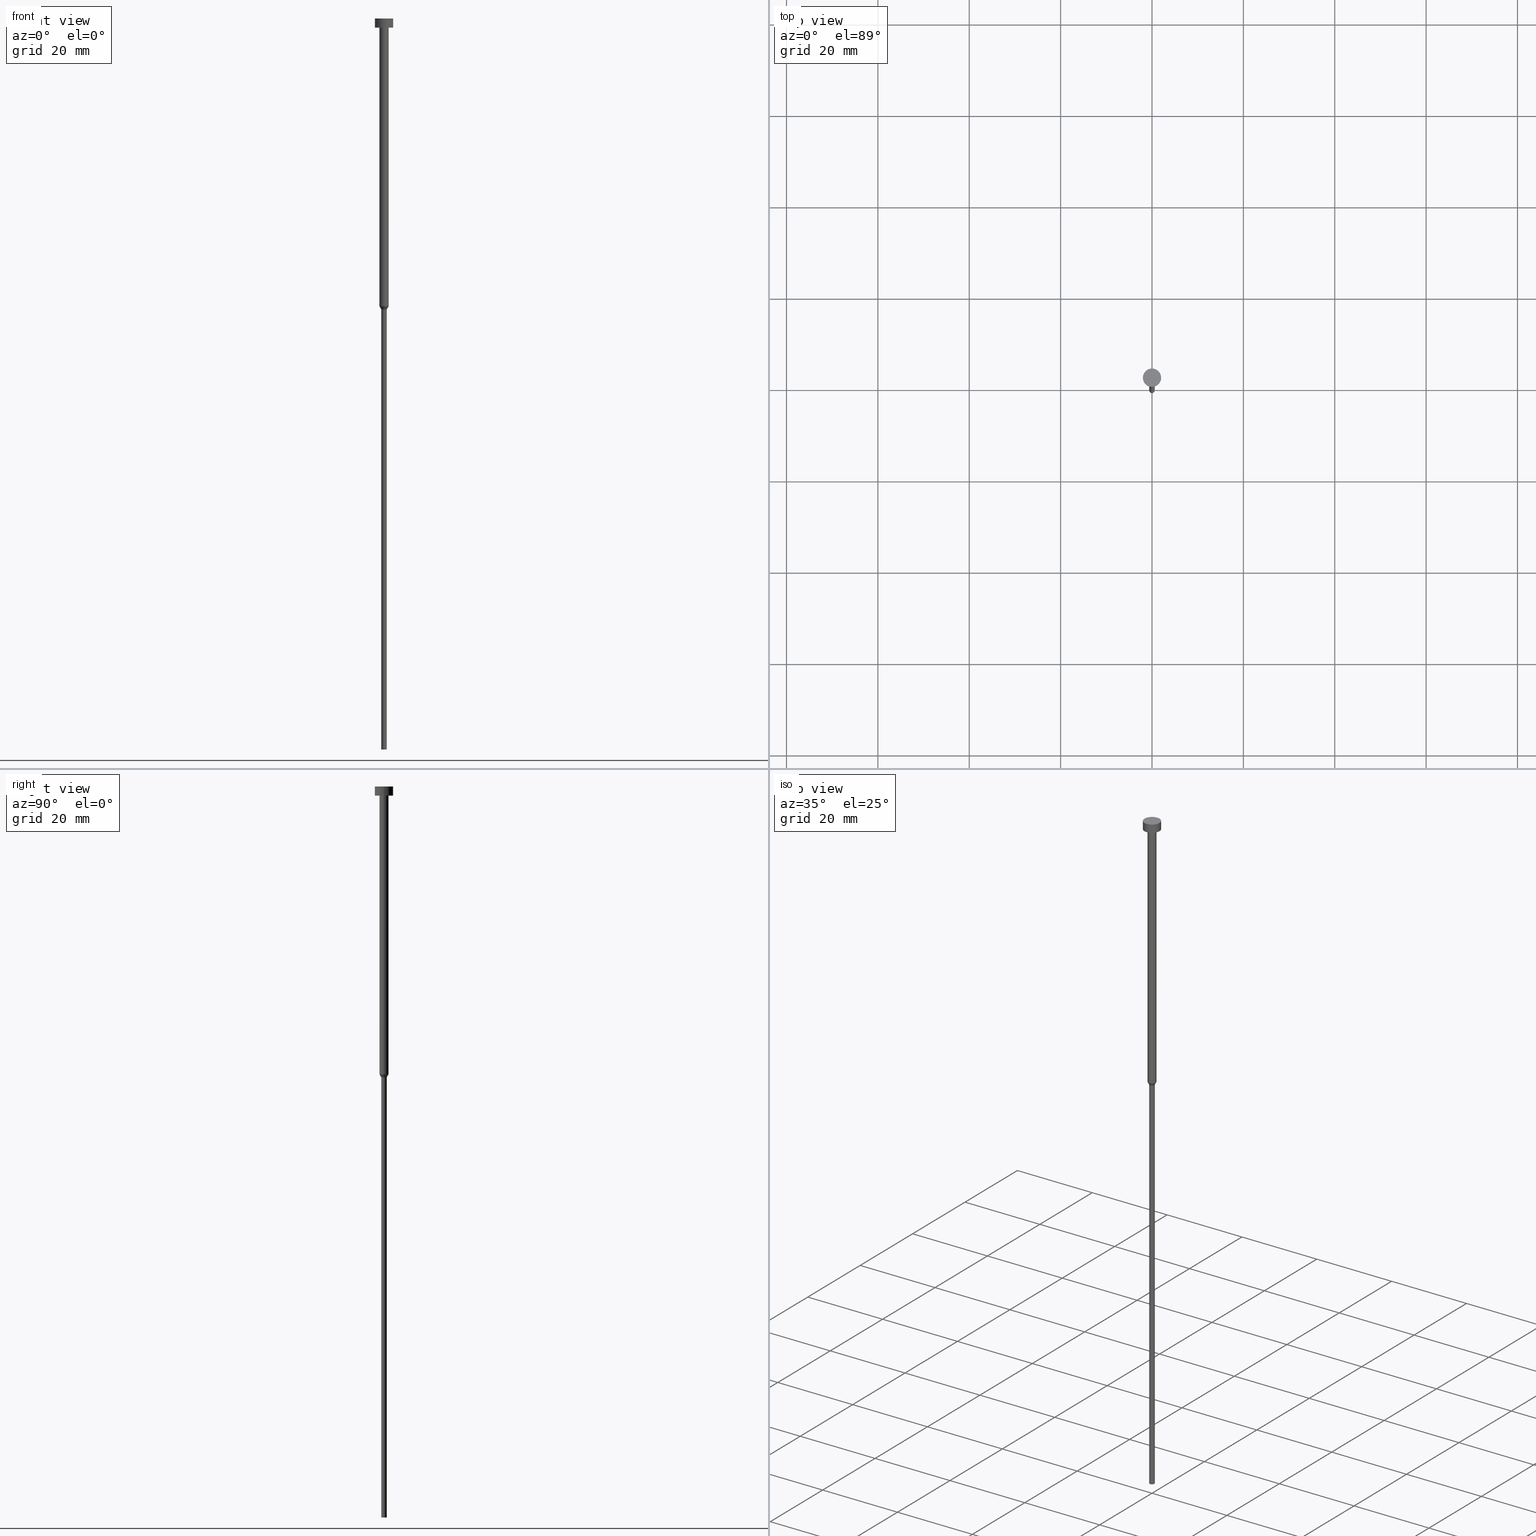
[diagram: canonical four-view strip — front | top / right | iso, engineering-drawing reading convention]
A machine part, canonical four-view strip (front | top / right | iso — engineering-drawing reading convention). The complete STEP part file that produces these views, byte-faithful:
ISO-10303-21;
HEADER;
FILE_DESCRIPTION (( 'STEP AP203' ),
    '1' );
FILE_NAME ('d66f.STEP',
    '2023-02-13T11:51:07',
    ( '' ),
    ( '' ),
    'SwSTEP 2.0',
    'SolidWorks 2019',
    '' );
FILE_SCHEMA (( 'CONFIG_CONTROL_DESIGN' ));
ENDSEC;

DATA;
#1 = CARTESIAN_POINT ( 'NONE',  ( 0.000000000000000000, 0.000000000000000000, -2.000000000000000444 ) ) ;
#2 = PERSON_AND_ORGANIZATION ( #183, #271 ) ;
#3 = APPROVAL_DATE_TIME ( #145, #191 ) ;
#4 = ORIENTED_EDGE ( 'NONE', *, *, #61, .T. ) ;
#5 = DATE_TIME_ROLE ( 'creation_date' ) ;
#6 = ORIENTED_EDGE ( 'NONE', *, *, #108, .T. ) ;
#7 = CC_DESIGN_PERSON_AND_ORGANIZATION_ASSIGNMENT ( #34, #259, ( #38 ) ) ;
#8 = AXIS2_PLACEMENT_3D ( 'NONE', #274, #79, #21 ) ;
#9 = VERTEX_POINT ( 'NONE', #231 ) ;
#10 = PERSON_AND_ORGANIZATION ( #183, #271 ) ;
#11 = ORIENTED_EDGE ( 'NONE', *, *, #136, .F. ) ;
#12 = DIRECTION ( 'NONE',  ( -0.000000000000000000, -0.000000000000000000, 1.000000000000000000 ) ) ;
#13 = LINE ( 'NONE', #41, #289 ) ;
#14 = CARTESIAN_POINT ( 'NONE',  ( -1.000000000000003109, 1.224646799147356905E-16, -63.00000000000000000 ) ) ;
#15 = CARTESIAN_POINT ( 'NONE',  ( 0.000000000000000000, 0.000000000000000000, -160.0000000000000000 ) ) ;
#16 = EDGE_CURVE ( 'NONE', #55, #342, #128, .T. ) ;
#17 = AXIS2_PLACEMENT_3D ( 'NONE', #192, #189, #355 ) ;
#18 = FACE_OUTER_BOUND ( 'NONE', #115, .T. ) ;
#19 = DIRECTION ( 'NONE',  ( -0.000000000000000000, -0.000000000000000000, 1.000000000000000000 ) ) ;
#20 = EDGE_CURVE ( 'NONE', #204, #173, #202, .T. ) ;
#21 = DIRECTION ( 'NONE',  ( 1.000000000000000000, 0.000000000000000000, 0.000000000000000000 ) ) ;
#22 = CARTESIAN_POINT ( 'NONE',  ( 2.000000000000000000, 0.000000000000000000, 0.000000000000000000 ) ) ;
#23 = DIRECTION ( 'NONE',  ( -0.000000000000000000, -0.000000000000000000, 1.000000000000000000 ) ) ;
#24 = CARTESIAN_POINT ( 'NONE',  ( 1.000000000000003553, 0.000000000000000000, -2.000000000000000444 ) ) ;
#25 = ORIENTED_EDGE ( 'NONE', *, *, #215, .F. ) ;
#26 = MANIFOLD_SOLID_BREP ( 'Rotovat1', #319 ) ;
#27 = CC_DESIGN_SECURITY_CLASSIFICATION ( #201, ( #305 ) ) ;
#28 = APPROVAL_STATUS ( 'not_yet_approved' ) ;
#29 = ORIENTED_EDGE ( 'NONE', *, *, #136, .T. ) ;
#30 = ORIENTED_EDGE ( 'NONE', *, *, #234, .F. ) ;
#31 = APPLICATION_PROTOCOL_DEFINITION ( 'international standard', 'config_control_design', 1994, #155 ) ;
#32 = ORIENTED_EDGE ( 'NONE', *, *, #102, .F. ) ;
#33 = AXIS2_PLACEMENT_3D ( 'NONE', #345, #129, #49 ) ;
#34 = PERSON_AND_ORGANIZATION ( #183, #271 ) ;
#35 = VERTEX_POINT ( 'NONE', #67 ) ;
#36 = EDGE_CURVE ( 'NONE', #282, #263, #181, .T. ) ;
#37 = EDGE_CURVE ( 'NONE', #204, #223, #212, .T. ) ;
#38 = PRODUCT ( 'd66f', 'd66f', '', ( #116 ) ) ;
#39 = ORIENTED_EDGE ( 'NONE', *, *, #168, .F. ) ;
#40 = VECTOR ( 'NONE', #12, 1000.000000000000000 ) ;
#41 = CARTESIAN_POINT ( 'NONE',  ( -0.5999999999999998668, 7.347880794884117764E-17, 0.000000000000000000 ) ) ;
#42 = AXIS2_PLACEMENT_3D ( 'NONE', #150, #172, #310 ) ;
#43 = DIRECTION ( 'NONE',  ( -0.000000000000000000, -0.000000000000000000, 1.000000000000000000 ) ) ;
#44 = DIRECTION ( 'NONE',  ( 1.000000000000000000, 0.000000000000000000, 0.000000000000000000 ) ) ;
#45 = FACE_OUTER_BOUND ( 'NONE', #250, .T. ) ;
#46 = CARTESIAN_POINT ( 'NONE',  ( 0.000000000000000000, 0.000000000000000000, -1.224646799147352961E-16 ) ) ;
#47 = ADVANCED_FACE ( 'NONE', ( #182 ), #78, .T. ) ;
#48 = FACE_OUTER_BOUND ( 'NONE', #237, .T. ) ;
#49 = DIRECTION ( 'NONE',  ( 1.000000000000000000, 0.000000000000000000, 0.000000000000000000 ) ) ;
#50 = AXIS2_PLACEMENT_3D ( 'NONE', #199, #346, #347 ) ;
#51 = FACE_BOUND ( 'NONE', #174, .T. ) ;
#52 = ADVANCED_FACE ( 'NONE', ( #270 ), #103, .T. ) ;
#53 = CARTESIAN_POINT ( 'NONE',  ( 2.000000000000000000, 0.000000000000000000, -2.000000000000000444 ) ) ;
#54 = ADVANCED_BREP_SHAPE_REPRESENTATION ( 'd66f', ( #26, #42 ), #157 ) ;
#55 = VERTEX_POINT ( 'NONE', #268 ) ;
#56 = CIRCLE ( 'NONE', #74, 0.5999999999999998668 ) ;
#57 = CALENDAR_DATE ( 2023, 13, 2 ) ;
#58 = ORIENTED_EDGE ( 'NONE', *, *, #20, .F. ) ;
#59 = CIRCLE ( 'NONE', #304, 0.5999999999999998668 ) ;
#60 = AXIS2_PLACEMENT_3D ( 'NONE', #246, #23, #224 ) ;
#61 = EDGE_CURVE ( 'NONE', #35, #282, #257, .T. ) ;
#62 = ORIENTED_EDGE ( 'NONE', *, *, #37, .T. ) ;
#63 = DIRECTION ( 'NONE',  ( -0.000000000000000000, -0.000000000000000000, 1.000000000000000000 ) ) ;
#64 = ADVANCED_FACE ( 'NONE', ( #133 ), #132, .T. ) ;
#65 = ORIENTED_EDGE ( 'NONE', *, *, #248, .F. ) ;
#66 = PERSON_AND_ORGANIZATION_ROLE ( 'classification_officer' ) ;
#67 = CARTESIAN_POINT ( 'NONE',  ( -0.5999999999999998668, 7.347880794884117764E-17, -160.0000000000000000 ) ) ;
#68 = CARTESIAN_POINT ( 'NONE',  ( 0.000000000000000000, 0.000000000000000000, -160.0000000000000000 ) ) ;
#69 = DIRECTION ( 'NONE',  ( -0.000000000000000000, -0.000000000000000000, 1.000000000000000000 ) ) ;
#70 = CIRCLE ( 'NONE', #60, 2.000000000000000000 ) ;
#71 = DIRECTION ( 'NONE',  ( -0.000000000000000000, -0.000000000000000000, 1.000000000000000000 ) ) ;
#72 = DIRECTION ( 'NONE',  ( 1.000000000000000000, 0.000000000000000000, 0.000000000000000000 ) ) ;
#73 = DIRECTION ( 'NONE',  ( -0.000000000000000000, -0.000000000000000000, 1.000000000000000000 ) ) ;
#74 = AXIS2_PLACEMENT_3D ( 'NONE', #184, #156, #72 ) ;
#75 = DIRECTION ( 'NONE',  ( 1.000000000000000000, 0.000000000000000000, 0.000000000000000000 ) ) ;
#76 = CYLINDRICAL_SURFACE ( 'NONE', #8, 0.5999999999999998668 ) ;
#77 = CARTESIAN_POINT ( 'NONE',  ( -1.000000000000003331, 1.224646799147357151E-16, 0.000000000000000000 ) ) ;
#78 = CONICAL_SURFACE ( 'NONE', #149, 1.000000000000003109, 0.5235987755982968173 ) ;
#79 = DIRECTION ( 'NONE',  ( -0.000000000000000000, -0.000000000000000000, 1.000000000000000000 ) ) ;
#80 = AXIS2_PLACEMENT_3D ( 'NONE', #1, #351, #197 ) ;
#81 = FACE_OUTER_BOUND ( 'NONE', #232, .T. ) ;
#82 = VERTEX_POINT ( 'NONE', #321 ) ;
#83 = APPROVAL_ROLE ( '' ) ;
#84 = DIRECTION ( 'NONE',  ( -0.000000000000000000, -0.000000000000000000, 1.000000000000000000 ) ) ;
#85 = EDGE_CURVE ( 'NONE', #35, #82, #13, .T. ) ;
#86 = CALENDAR_DATE ( 2023, 13, 2 ) ;
#87 = DESIGN_CONTEXT ( 'detailed design', #126, 'design' ) ;
#88 = ORIENTED_EDGE ( 'NONE', *, *, #139, .T. ) ;
#89 = AXIS2_PLACEMENT_3D ( 'NONE', #46, #97, #211 ) ;
#90 = ORIENTED_EDGE ( 'NONE', *, *, #168, .T. ) ;
#91 = CALENDAR_DATE ( 2023, 13, 2 ) ;
#92 = EDGE_LOOP ( 'NONE', ( #176, #279, #39, #146 ) ) ;
#93 = COORDINATED_UNIVERSAL_TIME_OFFSET ( 1, 0, .AHEAD. ) ;
#94 = ORIENTED_EDGE ( 'NONE', *, *, #121, .F. ) ;
#95 = APPROVAL_PERSON_ORGANIZATION ( #2, #191, #112 ) ;
#96 = DIRECTION ( 'NONE',  ( -0.000000000000000000, -0.000000000000000000, 1.000000000000000000 ) ) ;
#97 = DIRECTION ( 'NONE',  ( 0.000000000000000000, -0.000000000000000000, 1.000000000000000000 ) ) ;
#98 = CC_DESIGN_DATE_AND_TIME_ASSIGNMENT ( #235, #177, ( #201 ) ) ;
#99 = CARTESIAN_POINT ( 'NONE',  ( -2.000000000000000000, 2.449293598294706414E-16, -2.449293598294705921E-16 ) ) ;
#100 = AXIS2_PLACEMENT_3D ( 'NONE', #277, #275, #75 ) ;
#101 = DIRECTION ( 'NONE',  ( -0.000000000000000000, -0.000000000000000000, 1.000000000000000000 ) ) ;
#102 = EDGE_CURVE ( 'NONE', #173, #190, #135, .T. ) ;
#103 = CYLINDRICAL_SURFACE ( 'NONE', #218, 0.5999999999999998668 ) ;
#104 = CARTESIAN_POINT ( 'NONE',  ( 0.000000000000000000, 0.000000000000000000, -160.0000000000000000 ) ) ;
#105 = VECTOR ( 'NONE', #63, 1000.000000000000000 ) ;
#106 = AXIS2_PLACEMENT_3D ( 'NONE', #167, #222, #300 ) ;
#107 = FACE_OUTER_BOUND ( 'NONE', #117, .T. ) ;
#108 = EDGE_CURVE ( 'NONE', #82, #263, #56, .T. ) ;
#109 = CARTESIAN_POINT ( 'NONE',  ( 0.5999999999999998668, 0.000000000000000000, -160.0000000000000000 ) ) ;
#110 = AXIS2_PLACEMENT_3D ( 'NONE', #322, #73, #162 ) ;
#111 = ADVANCED_FACE ( 'NONE', ( #349 ), #264, .T. ) ;
#112 = APPROVAL_ROLE ( '' ) ;
#113 = PERSON_AND_ORGANIZATION_ROLE ( 'design_supplier' ) ;
#114 = APPROVAL ( #339, 'NEUR�EN�' ) ;
#115 = EDGE_LOOP ( 'NONE', ( #236, #286 ) ) ;
#116 = MECHANICAL_CONTEXT ( 'NONE', #155, 'mechanical' ) ;
#117 = EDGE_LOOP ( 'NONE', ( #94, #337 ) ) ;
#118 = CC_DESIGN_APPROVAL ( #114, ( #201 ) ) ;
#119 = PERSON_AND_ORGANIZATION ( #183, #271 ) ;
#120 = ORIENTED_EDGE ( 'NONE', *, *, #325, .T. ) ;
#121 = EDGE_CURVE ( 'NONE', #282, #35, #59, .T. ) ;
#122 = ORIENTED_EDGE ( 'NONE', *, *, #85, .F. ) ;
#123 = ORIENTED_EDGE ( 'NONE', *, *, #352, .F. ) ;
#124 = AXIS2_PLACEMENT_3D ( 'NONE', #265, #186, #44 ) ;
#125 = DIRECTION ( 'NONE',  ( 1.000000000000000000, 0.000000000000000000, 0.000000000000000000 ) ) ;
#126 = APPLICATION_CONTEXT ( 'configuration controlled 3d designs of mechanical parts and assemblies' ) ;
#127 = CARTESIAN_POINT ( 'NONE',  ( 0.000000000000000000, 0.000000000000000000, 0.000000000000000000 ) ) ;
#128 = CIRCLE ( 'NONE', #341, 1.000000000000003553 ) ;
#129 = DIRECTION ( 'NONE',  ( -0.000000000000000000, -0.000000000000000000, 1.000000000000000000 ) ) ;
#130 = ADVANCED_FACE ( 'NONE', ( #18 ), #239, .T. ) ;
#131 = VECTOR ( 'NONE', #159, 1000.000000000000000 ) ;
#132 = CYLINDRICAL_SURFACE ( 'NONE', #171, 1.000000000000003331 ) ;
#133 = FACE_OUTER_BOUND ( 'NONE', #283, .T. ) ;
#134 =( LENGTH_UNIT ( ) NAMED_UNIT ( * ) SI_UNIT ( .MILLI., .METRE. ) );
#135 = CIRCLE ( 'NONE', #193, 2.000000000000000000 ) ;
#136 = EDGE_CURVE ( 'NONE', #287, #342, #350, .T. ) ;
#137 = CIRCLE ( 'NONE', #110, 1.000000000000003109 ) ;
#138 = DIRECTION ( 'NONE',  ( 0.000000000000000000, 0.000000000000000000, -1.000000000000000000 ) ) ;
#139 = EDGE_CURVE ( 'NONE', #82, #9, #318, .T. ) ;
#140 = DIRECTION ( 'NONE',  ( -0.000000000000000000, -0.000000000000000000, 1.000000000000000000 ) ) ;
#141 = FACE_OUTER_BOUND ( 'NONE', #303, .T. ) ;
#142 = ORIENTED_EDGE ( 'NONE', *, *, #139, .F. ) ;
#143 = DATE_AND_TIME ( #280, #238 ) ;
#144 = CIRCLE ( 'NONE', #80, 2.000000000000000000 ) ;
#145 = DATE_AND_TIME ( #86, #296 ) ;
#146 = ORIENTED_EDGE ( 'NONE', *, *, #36, .F. ) ;
#147 = PERSON_AND_ORGANIZATION ( #183, #271 ) ;
#148 = ORIENTED_EDGE ( 'NONE', *, *, #20, .T. ) ;
#149 = AXIS2_PLACEMENT_3D ( 'NONE', #185, #273, #316 ) ;
#150 = CARTESIAN_POINT ( 'NONE',  ( 0.000000000000000000, 0.000000000000000000, 0.000000000000000000 ) ) ;
#151 = ORIENTED_EDGE ( 'NONE', *, *, #325, .F. ) ;
#152 = PERSON_AND_ORGANIZATION ( #183, #271 ) ;
#153 = EDGE_LOOP ( 'NONE', ( #90, #88, #205, #65 ) ) ;
#154 = CARTESIAN_POINT ( 'NONE',  ( 0.5999999999999998668, 0.000000000000000000, 0.000000000000000000 ) ) ;
#155 = APPLICATION_CONTEXT ( 'configuration controlled 3d designs of mechanical parts and assemblies' ) ;
#156 = DIRECTION ( 'NONE',  ( -0.000000000000000000, -0.000000000000000000, 1.000000000000000000 ) ) ;
#157 =( GEOMETRIC_REPRESENTATION_CONTEXT ( 3 ) GLOBAL_UNCERTAINTY_ASSIGNED_CONTEXT ( ( #281 ) ) GLOBAL_UNIT_ASSIGNED_CONTEXT ( ( #134, #244, #326 ) ) REPRESENTATION_CONTEXT ( 'NONE', 'WORKASPACE' ) );
#158 = DIRECTION ( 'NONE',  ( 1.000000000000000000, 0.000000000000000000, 0.000000000000000000 ) ) ;
#159 = DIRECTION ( 'NONE',  ( -0.000000000000000000, -0.000000000000000000, 1.000000000000000000 ) ) ;
#160 = ADVANCED_FACE ( 'NONE', ( #45 ), #291, .T. ) ;
#161 = DIRECTION ( 'NONE',  ( 1.000000000000000000, 0.000000000000000000, 0.000000000000000000 ) ) ;
#162 = DIRECTION ( 'NONE',  ( 1.000000000000000000, 0.000000000000000000, 0.000000000000000000 ) ) ;
#163 = LINE ( 'NONE', #77, #242 ) ;
#164 = CC_DESIGN_PERSON_AND_ORGANIZATION_ASSIGNMENT ( #206, #66, ( #201 ) ) ;
#165 = CARTESIAN_POINT ( 'NONE',  ( 0.5999999999999998668, 0.000000000000000000, -63.69282032302756136 ) ) ;
#166 = CIRCLE ( 'NONE', #33, 1.000000000000003553 ) ;
#167 = CARTESIAN_POINT ( 'NONE',  ( 0.000000000000000000, 0.000000000000000000, 0.000000000000000000 ) ) ;
#168 = EDGE_CURVE ( 'NONE', #263, #82, #214, .T. ) ;
#169 = PLANE ( 'NONE',  #348 ) ;
#170 = ORIENTED_EDGE ( 'NONE', *, *, #352, .T. ) ;
#171 = AXIS2_PLACEMENT_3D ( 'NONE', #293, #69, #295 ) ;
#172 = DIRECTION ( 'NONE',  ( 0.000000000000000000, 0.000000000000000000, 1.000000000000000000 ) ) ;
#173 = VERTEX_POINT ( 'NONE', #99 ) ;
#174 = EDGE_LOOP ( 'NONE', ( #308, #225 ) ) ;
#175 = APPROVAL_STATUS ( 'not_yet_approved' ) ;
#176 = ORIENTED_EDGE ( 'NONE', *, *, #121, .T. ) ;
#177 = DATE_TIME_ROLE ( 'classification_date' ) ;
#178 = ORIENTED_EDGE ( 'NONE', *, *, #203, .T. ) ;
#179 = VECTOR ( 'NONE', #323, 1000.000000000000000 ) ;
#180 = APPROVAL_ROLE ( '' ) ;
#181 = LINE ( 'NONE', #154, #40 ) ;
#182 = FACE_OUTER_BOUND ( 'NONE', #312, .T. ) ;
#183 = PERSON ( 'NEUR�EN�', 'NEUR�EN�', 'NEUR�EN�', ('NEUR�EN�'), ('NEUR�EN�'), ('NEUR�EN�') ) ;
#184 = CARTESIAN_POINT ( 'NONE',  ( 0.000000000000000000, 0.000000000000000000, -63.69282032302756136 ) ) ;
#185 = CARTESIAN_POINT ( 'NONE',  ( 0.000000000000000000, 0.000000000000000000, -63.00000000000000000 ) ) ;
#186 = DIRECTION ( 'NONE',  ( -0.000000000000000000, -0.000000000000000000, 1.000000000000000000 ) ) ;
#187 = CARTESIAN_POINT ( 'NONE',  ( 0.000000000000000000, 0.000000000000000000, 0.000000000000000000 ) ) ;
#188 = CC_DESIGN_APPROVAL ( #191, ( #305 ) ) ;
#189 = DIRECTION ( 'NONE',  ( 0.000000000000000000, 0.000000000000000000, -1.000000000000000000 ) ) ;
#190 = VERTEX_POINT ( 'NONE', #213 ) ;
#191 = APPROVAL ( #28, 'NEUR�EN�' ) ;
#192 = CARTESIAN_POINT ( 'NONE',  ( 0.000000000000000000, -2.000000000000000000, -2.000000000000000444 ) ) ;
#193 = AXIS2_PLACEMENT_3D ( 'NONE', #241, #19, #240 ) ;
#194 = CARTESIAN_POINT ( 'NONE',  ( 1.000000000000003109, 0.000000000000000000, -63.00000000000000000 ) ) ;
#195 = LOCAL_TIME ( 12, 51, 7.000000000000000000, #254 ) ;
#196 = DIRECTION ( 'NONE',  ( -1.000000000000000000, 0.000000000000000000, -0.000000000000000000 ) ) ;
#197 = DIRECTION ( 'NONE',  ( 1.000000000000000000, 0.000000000000000000, 0.000000000000000000 ) ) ;
#198 = APPROVAL_DATE_TIME ( #143, #207 ) ;
#199 = CARTESIAN_POINT ( 'NONE',  ( 0.000000000000000000, 0.000000000000000000, -2.000000000000000444 ) ) ;
#200 = SHAPE_DEFINITION_REPRESENTATION ( #233, #54 ) ;
#201 = SECURITY_CLASSIFICATION ( '', '', #227 ) ;
#202 = LINE ( 'NONE', #306, #105 ) ;
#203 = EDGE_CURVE ( 'NONE', #287, #9, #137, .T. ) ;
#204 = VERTEX_POINT ( 'NONE', #320 ) ;
#205 = ORIENTED_EDGE ( 'NONE', *, *, #203, .F. ) ;
#206 = PERSON_AND_ORGANIZATION ( #183, #271 ) ;
#207 = APPROVAL ( #175, 'NEUR�EN�' ) ;
#208 = CARTESIAN_POINT ( 'NONE',  ( 0.000000000000000000, 0.000000000000000000, -2.000000000000000444 ) ) ;
#209 = VECTOR ( 'NONE', #298, 1000.000000000000114 ) ;
#210 = DIRECTION ( 'NONE',  ( 1.000000000000000000, 0.000000000000000000, 0.000000000000000000 ) ) ;
#211 = DIRECTION ( 'NONE',  ( 1.000000000000000000, 0.000000000000000000, 0.000000000000000000 ) ) ;
#212 = CIRCLE ( 'NONE', #50, 2.000000000000000000 ) ;
#213 = CARTESIAN_POINT ( 'NONE',  ( 2.000000000000000000, 0.000000000000000000, -2.449293598294705921E-16 ) ) ;
#214 = CIRCLE ( 'NONE', #353, 0.5999999999999998668 ) ;
#215 = EDGE_CURVE ( 'NONE', #342, #55, #166, .T. ) ;
#216 = DIRECTION ( 'NONE',  ( -0.000000000000000000, -0.000000000000000000, 1.000000000000000000 ) ) ;
#217 = CARTESIAN_POINT ( 'NONE',  ( 0.000000000000000000, 0.000000000000000000, -63.69282032302756136 ) ) ;
#218 = AXIS2_PLACEMENT_3D ( 'NONE', #187, #101, #210 ) ;
#219 = ADVANCED_FACE ( 'NONE', ( #141 ), #247, .T. ) ;
#220 = APPROVAL_PERSON_ORGANIZATION ( #10, #114, #180 ) ;
#221 = CARTESIAN_POINT ( 'NONE',  ( 1.000000000000003109, 0.000000000000000000, -63.00000000000000000 ) ) ;
#222 = DIRECTION ( 'NONE',  ( -0.000000000000000000, -0.000000000000000000, 1.000000000000000000 ) ) ;
#223 = VERTEX_POINT ( 'NONE', #53 ) ;
#224 = DIRECTION ( 'NONE',  ( 1.000000000000000000, 0.000000000000000000, 0.000000000000000000 ) ) ;
#225 = ORIENTED_EDGE ( 'NONE', *, *, #16, .T. ) ;
#226 = COORDINATED_UNIVERSAL_TIME_OFFSET ( 1, 0, .AHEAD. ) ;
#227 = SECURITY_CLASSIFICATION_LEVEL ( 'unclassified' ) ;
#228 = ORIENTED_EDGE ( 'NONE', *, *, #309, .F. ) ;
#229 = CC_DESIGN_PERSON_AND_ORGANIZATION_ASSIGNMENT ( #147, #113, ( #305 ) ) ;
#230 = PERSON_AND_ORGANIZATION_ROLE ( 'creator' ) ;
#231 = CARTESIAN_POINT ( 'NONE',  ( -1.000000000000003109, 1.224646799147356905E-16, -63.00000000000000000 ) ) ;
#232 = EDGE_LOOP ( 'NONE', ( #151, #284 ) ) ;
#233 = PRODUCT_DEFINITION_SHAPE ( 'NONE', 'NONE',  #299 ) ;
#234 = EDGE_CURVE ( 'NONE', #223, #190, #327, .T. ) ;
#235 = DATE_AND_TIME ( #302, #245 ) ;
#236 = ORIENTED_EDGE ( 'NONE', *, *, #309, .T. ) ;
#237 = EDGE_LOOP ( 'NONE', ( #122, #4, #258, #332 ) ) ;
#238 = LOCAL_TIME ( 12, 51, 7.000000000000000000, #93 ) ;
#239 = PLANE ( 'NONE',  #89 ) ;
#240 = DIRECTION ( 'NONE',  ( 1.000000000000000000, 0.000000000000000000, 0.000000000000000000 ) ) ;
#241 = CARTESIAN_POINT ( 'NONE',  ( 0.000000000000000000, 0.000000000000000000, -2.449293598294705921E-16 ) ) ;
#242 = VECTOR ( 'NONE', #297, 1000.000000000000000 ) ;
#243 = DIRECTION ( 'NONE',  ( -0.000000000000000000, -0.000000000000000000, 1.000000000000000000 ) ) ;
#244 =( NAMED_UNIT ( * ) PLANE_ANGLE_UNIT ( ) SI_UNIT ( $, .RADIAN. ) );
#245 = LOCAL_TIME ( 12, 51, 7.000000000000000000, #333 ) ;
#246 = CARTESIAN_POINT ( 'NONE',  ( 0.000000000000000000, 0.000000000000000000, -2.449293598294705921E-16 ) ) ;
#247 = CYLINDRICAL_SURFACE ( 'NONE', #106, 2.000000000000000000 ) ;
#248 = EDGE_CURVE ( 'NONE', #263, #287, #354, .T. ) ;
#249 = CARTESIAN_POINT ( 'NONE',  ( 0.000000000000000000, 0.000000000000000000, 0.000000000000000000 ) ) ;
#250 = EDGE_LOOP ( 'NONE', ( #120, #148, #228, #30 ) ) ;
#251 = CC_DESIGN_APPROVAL ( #207, ( #299 ) ) ;
#252 = PERSON_AND_ORGANIZATION ( #183, #271 ) ;
#253 = CC_DESIGN_DATE_AND_TIME_ASSIGNMENT ( #336, #5, ( #299 ) ) ;
#254 = COORDINATED_UNIVERSAL_TIME_OFFSET ( 1, 0, .AHEAD. ) ;
#255 = ORIENTED_EDGE ( 'NONE', *, *, #272, .F. ) ;
#256 = COORDINATED_UNIVERSAL_TIME_OFFSET ( 1, 0, .AHEAD. ) ;
#257 = CIRCLE ( 'NONE', #311, 0.5999999999999998668 ) ;
#258 = ORIENTED_EDGE ( 'NONE', *, *, #36, .T. ) ;
#259 = PERSON_AND_ORGANIZATION_ROLE ( 'design_owner' ) ;
#260 = ORIENTED_EDGE ( 'NONE', *, *, #16, .F. ) ;
#261 = EDGE_LOOP ( 'NONE', ( #255, #170, #29, #260 ) ) ;
#262 = PRODUCT_RELATED_PRODUCT_CATEGORY ( 'detail', '', ( #38 ) ) ;
#263 = VERTEX_POINT ( 'NONE', #165 ) ;
#264 = CONICAL_SURFACE ( 'NONE', #124, 1.000000000000003109, 0.5235987755982968173 ) ;
#265 = CARTESIAN_POINT ( 'NONE',  ( 0.000000000000000000, 0.000000000000000000, -63.00000000000000000 ) ) ;
#266 = AXIS2_PLACEMENT_3D ( 'NONE', #249, #140, #278 ) ;
#267 = ADVANCED_FACE ( 'NONE', ( #51, #81 ), #301, .T. ) ;
#268 = CARTESIAN_POINT ( 'NONE',  ( -1.000000000000003553, 1.224646799147357398E-16, -2.000000000000000444 ) ) ;
#269 = DIRECTION ( 'NONE',  ( -0.4999999999999981681, 6.123233995736742617E-17, 0.8660254037844395958 ) ) ;
#270 = FACE_OUTER_BOUND ( 'NONE', #92, .T. ) ;
#271 = ORGANIZATION ( 'NEUR�EN�', 'NEUR�EN�', '' ) ;
#272 = EDGE_CURVE ( 'NONE', #9, #55, #163, .T. ) ;
#273 = DIRECTION ( 'NONE',  ( -0.000000000000000000, -0.000000000000000000, 1.000000000000000000 ) ) ;
#274 = CARTESIAN_POINT ( 'NONE',  ( 0.000000000000000000, 0.000000000000000000, 0.000000000000000000 ) ) ;
#275 = DIRECTION ( 'NONE',  ( -0.000000000000000000, -0.000000000000000000, 1.000000000000000000 ) ) ;
#276 = LOCAL_TIME ( 12, 51, 7.000000000000000000, #256 ) ;
#277 = CARTESIAN_POINT ( 'NONE',  ( 0.000000000000000000, 0.000000000000000000, -63.00000000000000000 ) ) ;
#278 = DIRECTION ( 'NONE',  ( 1.000000000000000000, 0.000000000000000000, 0.000000000000000000 ) ) ;
#279 = ORIENTED_EDGE ( 'NONE', *, *, #85, .T. ) ;
#280 = CALENDAR_DATE ( 2023, 13, 2 ) ;
#281 = UNCERTAINTY_MEASURE_WITH_UNIT (LENGTH_MEASURE( 1.000000000000000082E-05 ), #134, 'distance_accuracy_value', 'NONE');
#282 = VERTEX_POINT ( 'NONE', #109 ) ;
#283 = EDGE_LOOP ( 'NONE', ( #178, #328, #25, #11 ) ) ;
#284 = ORIENTED_EDGE ( 'NONE', *, *, #37, .F. ) ;
#285 = DATE_AND_TIME ( #91, #276 ) ;
#286 = ORIENTED_EDGE ( 'NONE', *, *, #102, .T. ) ;
#287 = VERTEX_POINT ( 'NONE', #221 ) ;
#288 = DIRECTION ( 'NONE',  ( 1.000000000000000000, 0.000000000000000000, 0.000000000000000000 ) ) ;
#289 = VECTOR ( 'NONE', #71, 1000.000000000000000 ) ;
#290 = CC_DESIGN_PERSON_AND_ORGANIZATION_ASSIGNMENT ( #252, #230, ( #305 ) ) ;
#291 = CYLINDRICAL_SURFACE ( 'NONE', #329, 2.000000000000000000 ) ;
#292 = APPROVAL_PERSON_ORGANIZATION ( #119, #207, #83 ) ;
#293 = CARTESIAN_POINT ( 'NONE',  ( 0.000000000000000000, 0.000000000000000000, 0.000000000000000000 ) ) ;
#294 = CARTESIAN_POINT ( 'NONE',  ( 1.000000000000003331, 0.000000000000000000, 0.000000000000000000 ) ) ;
#295 = DIRECTION ( 'NONE',  ( 1.000000000000000000, 0.000000000000000000, 0.000000000000000000 ) ) ;
#296 = LOCAL_TIME ( 12, 51, 7.000000000000000000, #226 ) ;
#297 = DIRECTION ( 'NONE',  ( -0.000000000000000000, -0.000000000000000000, 1.000000000000000000 ) ) ;
#298 = DIRECTION ( 'NONE',  ( 0.4999999999999981681, 0.000000000000000000, 0.8660254037844395958 ) ) ;
#299 = PRODUCT_DEFINITION ( 'NEZN�M�', '', #305, #87 ) ;
#300 = DIRECTION ( 'NONE',  ( 1.000000000000000000, 0.000000000000000000, 0.000000000000000000 ) ) ;
#301 = PLANE ( 'NONE',  #17 ) ;
#302 = CALENDAR_DATE ( 2023, 13, 2 ) ;
#303 = EDGE_LOOP ( 'NONE', ( #58, #62, #335, #32 ) ) ;
#304 = AXIS2_PLACEMENT_3D ( 'NONE', #68, #96, #125 ) ;
#305 = PRODUCT_DEFINITION_FORMATION_WITH_SPECIFIED_SOURCE ( 'LIBOVOLN�', '', #38, .NOT_KNOWN. ) ;
#306 = CARTESIAN_POINT ( 'NONE',  ( -2.000000000000000000, 2.449293598294706414E-16, 0.000000000000000000 ) ) ;
#307 = APPLICATION_PROTOCOL_DEFINITION ( 'international standard', 'config_control_design', 1994, #126 ) ;
#308 = ORIENTED_EDGE ( 'NONE', *, *, #215, .T. ) ;
#309 = EDGE_CURVE ( 'NONE', #190, #173, #70, .T. ) ;
#310 = DIRECTION ( 'NONE',  ( 1.000000000000000000, 0.000000000000000000, 0.000000000000000000 ) ) ;
#311 = AXIS2_PLACEMENT_3D ( 'NONE', #15, #216, #288 ) ;
#312 = EDGE_LOOP ( 'NONE', ( #142, #6, #340, #123 ) ) ;
#313 = CIRCLE ( 'NONE', #100, 1.000000000000003109 ) ;
#314 = PERSON_AND_ORGANIZATION_ROLE ( 'creator' ) ;
#315 = DIRECTION ( 'NONE',  ( 1.000000000000000000, 0.000000000000000000, 0.000000000000000000 ) ) ;
#316 = DIRECTION ( 'NONE',  ( 1.000000000000000000, 0.000000000000000000, 0.000000000000000000 ) ) ;
#317 = CC_DESIGN_PERSON_AND_ORGANIZATION_ASSIGNMENT ( #152, #314, ( #299 ) ) ;
#318 = LINE ( 'NONE', #14, #343 ) ;
#319 = CLOSED_SHELL ( 'NONE', ( #160, #64, #111, #52, #344, #338, #47, #330, #267, #219, #130 ) ) ;
#320 = CARTESIAN_POINT ( 'NONE',  ( -2.000000000000000000, 2.449293598294706414E-16, -2.000000000000000444 ) ) ;
#321 = CARTESIAN_POINT ( 'NONE',  ( -0.5999999999999998668, 7.347880794884117764E-17, -63.69282032302756136 ) ) ;
#322 = CARTESIAN_POINT ( 'NONE',  ( 0.000000000000000000, 0.000000000000000000, -63.00000000000000000 ) ) ;
#323 = DIRECTION ( 'NONE',  ( -0.000000000000000000, -0.000000000000000000, 1.000000000000000000 ) ) ;
#324 = FACE_OUTER_BOUND ( 'NONE', #261, .T. ) ;
#325 = EDGE_CURVE ( 'NONE', #223, #204, #144, .T. ) ;
#326 =( NAMED_UNIT ( * ) SI_UNIT ( $, .STERADIAN. ) SOLID_ANGLE_UNIT ( ) );
#327 = LINE ( 'NONE', #22, #179 ) ;
#328 = ORIENTED_EDGE ( 'NONE', *, *, #272, .T. ) ;
#329 = AXIS2_PLACEMENT_3D ( 'NONE', #127, #243, #161 ) ;
#330 = ADVANCED_FACE ( 'NONE', ( #324 ), #331, .T. ) ;
#331 = CYLINDRICAL_SURFACE ( 'NONE', #266, 1.000000000000003331 ) ;
#332 = ORIENTED_EDGE ( 'NONE', *, *, #108, .F. ) ;
#333 = COORDINATED_UNIVERSAL_TIME_OFFSET ( 1, 0, .AHEAD. ) ;
#334 = APPROVAL_DATE_TIME ( #285, #114 ) ;
#335 = ORIENTED_EDGE ( 'NONE', *, *, #234, .T. ) ;
#336 = DATE_AND_TIME ( #57, #195 ) ;
#337 = ORIENTED_EDGE ( 'NONE', *, *, #61, .F. ) ;
#338 = ADVANCED_FACE ( 'NONE', ( #48 ), #76, .T. ) ;
#339 = APPROVAL_STATUS ( 'not_yet_approved' ) ;
#340 = ORIENTED_EDGE ( 'NONE', *, *, #248, .T. ) ;
#341 = AXIS2_PLACEMENT_3D ( 'NONE', #208, #84, #315 ) ;
#342 = VERTEX_POINT ( 'NONE', #24 ) ;
#343 = VECTOR ( 'NONE', #269, 1000.000000000000114 ) ;
#344 = ADVANCED_FACE ( 'NONE', ( #107 ), #169, .T. ) ;
#345 = CARTESIAN_POINT ( 'NONE',  ( 0.000000000000000000, 0.000000000000000000, -2.000000000000000444 ) ) ;
#346 = DIRECTION ( 'NONE',  ( -0.000000000000000000, -0.000000000000000000, 1.000000000000000000 ) ) ;
#347 = DIRECTION ( 'NONE',  ( 1.000000000000000000, 0.000000000000000000, 0.000000000000000000 ) ) ;
#348 = AXIS2_PLACEMENT_3D ( 'NONE', #104, #138, #196 ) ;
#349 = FACE_OUTER_BOUND ( 'NONE', #153, .T. ) ;
#350 = LINE ( 'NONE', #294, #131 ) ;
#351 = DIRECTION ( 'NONE',  ( -0.000000000000000000, -0.000000000000000000, 1.000000000000000000 ) ) ;
#352 = EDGE_CURVE ( 'NONE', #9, #287, #313, .T. ) ;
#353 = AXIS2_PLACEMENT_3D ( 'NONE', #217, #43, #158 ) ;
#354 = LINE ( 'NONE', #194, #209 ) ;
#355 = DIRECTION ( 'NONE',  ( -1.000000000000000000, 0.000000000000000000, -0.000000000000000000 ) ) ;
ENDSEC;
END-ISO-10303-21;
